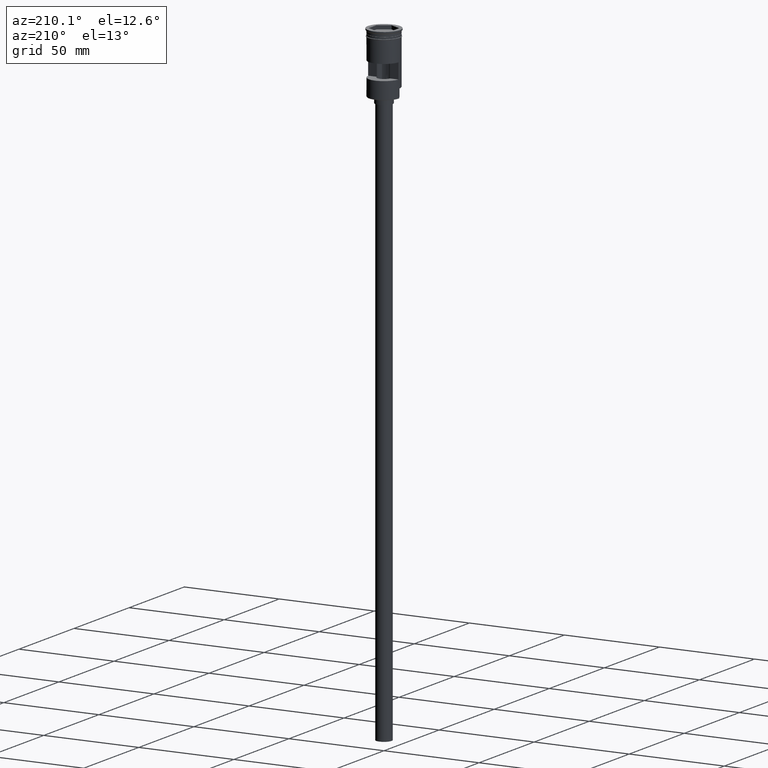
[diagram: clean part render]
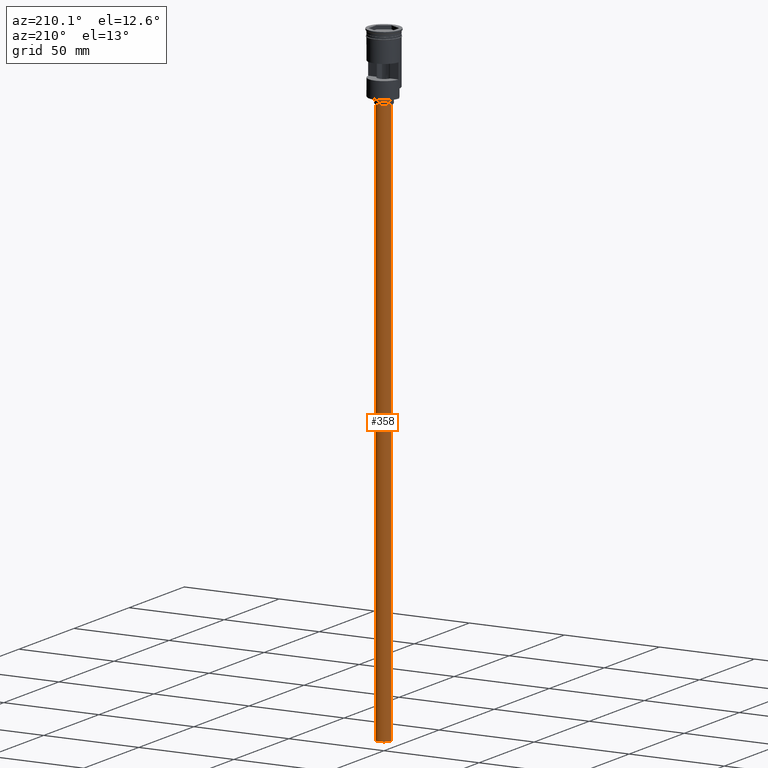
[diagram: same view with one face highlighted and labeled with its STEP entity id]
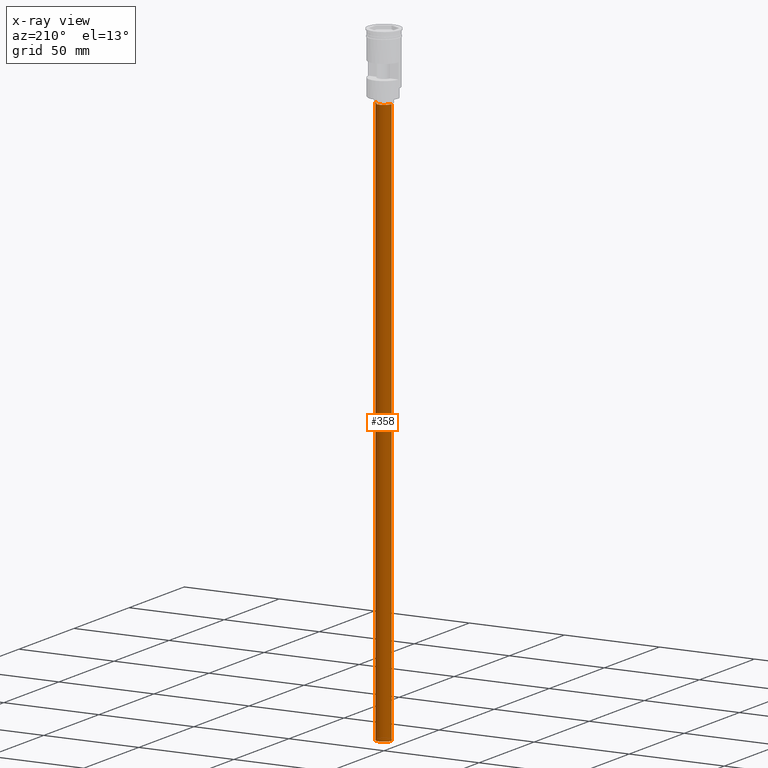
[diagram: x-ray of the same camera — body ghosted, the highlighted face saturated]
A machine part, auxiliary view. The second image highlights one B-rep face of the part: STEP entity #358.
The next image is the same camera in x-ray: the body ghosted, the highlighted face saturated — about 0% of this face is hidden behind the body in this view.
In plain terms, the highlighted cylindrical surface (edge-blend (fillet) strip) has radius 4 mm, axis along (-0, -0, 1).
Its self-contained STEP definition (entity closure, byte-faithful):
#59 = VECTOR ( 'NONE', #651, 1000.000000000000000 ) ;
#130 = EDGE_CURVE ( 'NONE', #865, #781, #528, .T. ) ;
#134 = VERTEX_POINT ( 'NONE', #261 ) ;
#153 = ORIENTED_EDGE ( 'NONE', *, *, #1285, .F. ) ;
#205 = CARTESIAN_POINT ( 'NONE',  ( 4.000000000000000000, 0.000000000000000000, -35.00000000000000000 ) ) ;
#261 = CARTESIAN_POINT ( 'NONE',  ( -4.000000000000000000, 4.898587196589412829E-16, -331.9999999999999432 ) ) ;
#278 = ORIENTED_EDGE ( 'NONE', *, *, #300, .T. ) ;
#300 = EDGE_CURVE ( 'NONE', #1080, #781, #788, .T. ) ;
#358 = ADVANCED_FACE ( 'NONE', ( #1037 ), #935, .T. ) ;
#437 = DIRECTION ( 'NONE',  ( 1.000000000000000000, 0.000000000000000000, 0.000000000000000000 ) ) ;
#528 = LINE ( 'NONE', #1018, #59 ) ;
#555 = CIRCLE ( 'NONE', #1465, 4.000000000000000000 ) ;
#651 = DIRECTION ( 'NONE',  ( -0.000000000000000000, -0.000000000000000000, 1.000000000000000000 ) ) ;
#676 = CARTESIAN_POINT ( 'NONE',  ( 0.000000000000000000, 0.000000000000000000, -331.9999999999999432 ) ) ;
#682 = DIRECTION ( 'NONE',  ( -0.000000000000000000, -0.000000000000000000, 1.000000000000000000 ) ) ;
#684 = AXIS2_PLACEMENT_3D ( 'NONE', #676, #682, #437 ) ;
#685 = VECTOR ( 'NONE', #804, 1000.000000000000000 ) ;
#781 = VERTEX_POINT ( 'NONE', #205 ) ;
#784 = EDGE_CURVE ( 'NONE', #134, #1080, #1568, .T. ) ;
#786 = CARTESIAN_POINT ( 'NONE',  ( -4.000000000000000000, 4.898587196589412829E-16, -35.00000000000000000 ) ) ;
#788 = CIRCLE ( 'NONE', #1172, 4.000000000000000000 ) ;
#804 = DIRECTION ( 'NONE',  ( -0.000000000000000000, -0.000000000000000000, 1.000000000000000000 ) ) ;
#824 = DIRECTION ( 'NONE',  ( 0.000000000000000000, 0.000000000000000000, -1.000000000000000000 ) ) ;
#829 = ORIENTED_EDGE ( 'NONE', *, *, #784, .T. ) ;
#865 = VERTEX_POINT ( 'NONE', #1292 ) ;
#927 = CARTESIAN_POINT ( 'NONE',  ( 0.000000000000000000, 0.000000000000000000, -331.9999999999999432 ) ) ;
#929 = CARTESIAN_POINT ( 'NONE',  ( -4.000000000000000000, 4.898587196589412829E-16, -331.9999999999999432 ) ) ;
#935 = CYLINDRICAL_SURFACE ( 'NONE', #684, 4.000000000000000000 ) ;
#1018 = CARTESIAN_POINT ( 'NONE',  ( 4.000000000000000000, 0.000000000000000000, -331.9999999999999432 ) ) ;
#1037 = FACE_OUTER_BOUND ( 'NONE', #1231, .T. ) ;
#1065 = DIRECTION ( 'NONE',  ( -1.000000000000000000, 0.000000000000000000, 0.000000000000000000 ) ) ;
#1068 = DIRECTION ( 'NONE',  ( 0.000000000000000000, 0.000000000000000000, -1.000000000000000000 ) ) ;
#1080 = VERTEX_POINT ( 'NONE', #786 ) ;
#1172 = AXIS2_PLACEMENT_3D ( 'NONE', #1416, #824, #1065 ) ;
#1231 = EDGE_LOOP ( 'NONE', ( #153, #829, #278, #1386 ) ) ;
#1285 = EDGE_CURVE ( 'NONE', #134, #865, #555, .T. ) ;
#1292 = CARTESIAN_POINT ( 'NONE',  ( 4.000000000000000000, 0.000000000000000000, -331.9999999999999432 ) ) ;
#1299 = DIRECTION ( 'NONE',  ( -1.000000000000000000, 0.000000000000000000, 0.000000000000000000 ) ) ;
#1386 = ORIENTED_EDGE ( 'NONE', *, *, #130, .F. ) ;
#1416 = CARTESIAN_POINT ( 'NONE',  ( 0.000000000000000000, 0.000000000000000000, -35.00000000000000000 ) ) ;
#1465 = AXIS2_PLACEMENT_3D ( 'NONE', #927, #1068, #1299 ) ;
#1568 = LINE ( 'NONE', #929, #685 ) ;